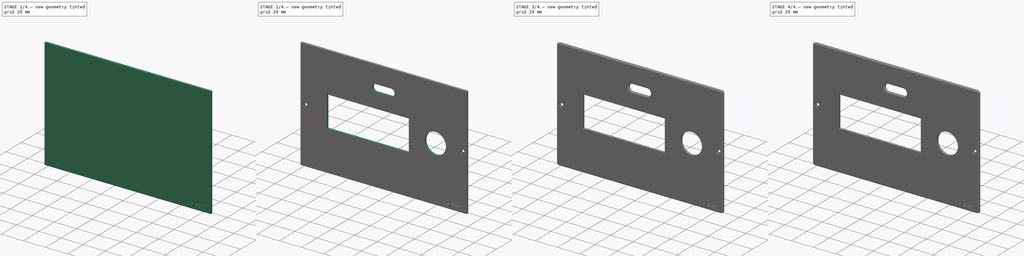
[diagram: build sequence overview — one tinted view per stage of 4, left to right]
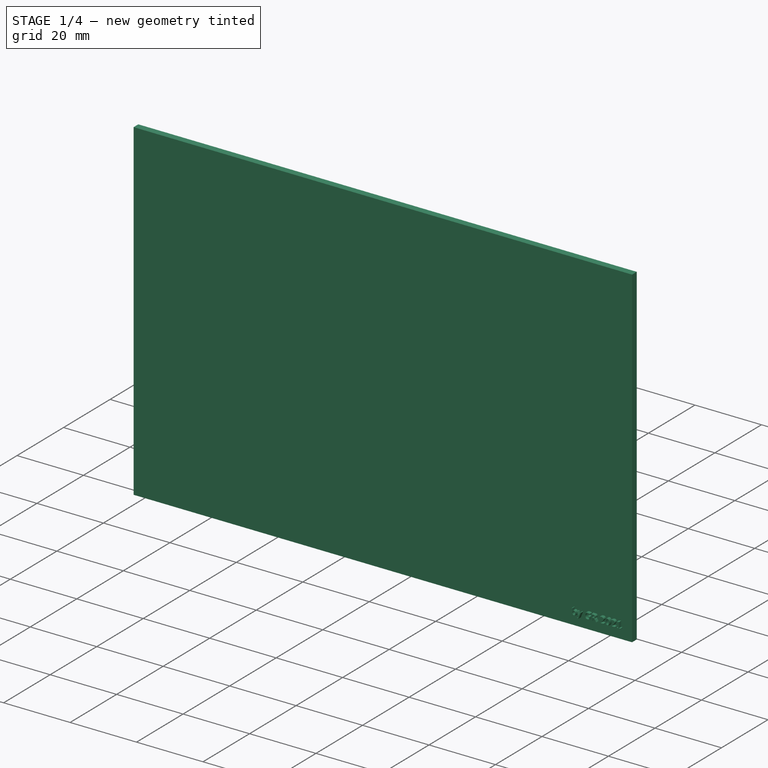
[diagram: stage 1 of 4 — iso view after this stage's code; geometry added in this stage tinted green]
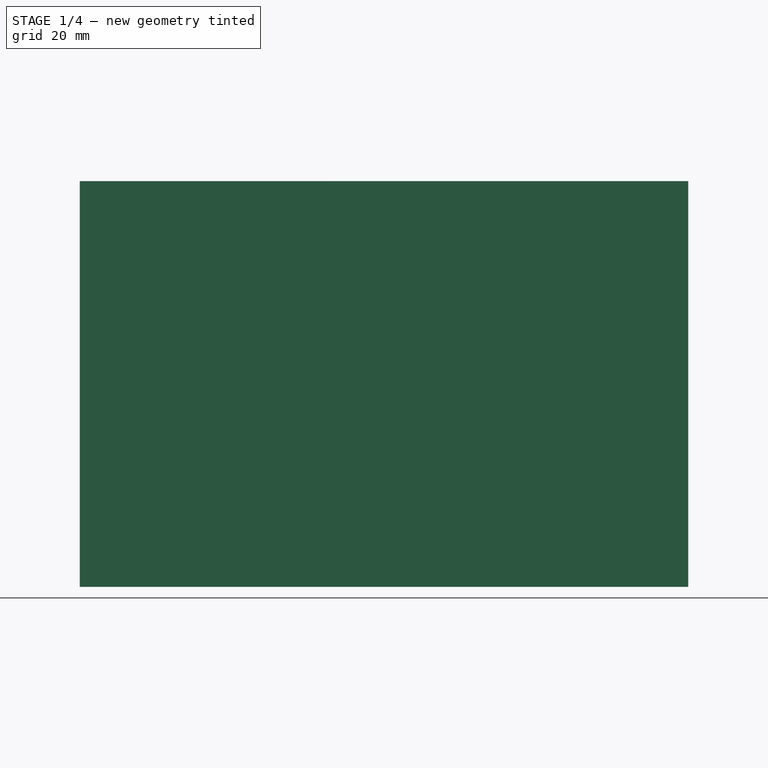
[diagram: stage 1 of 4 — front view after this stage's code; geometry added in this stage tinted green]
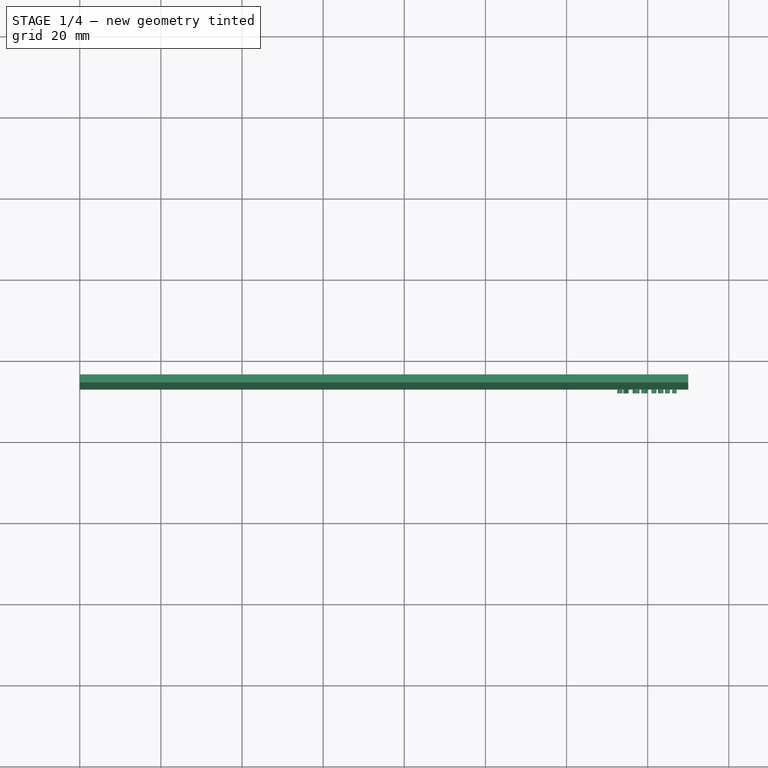
[diagram: stage 1 of 4 — top view after this stage's code; geometry added in this stage tinted green]
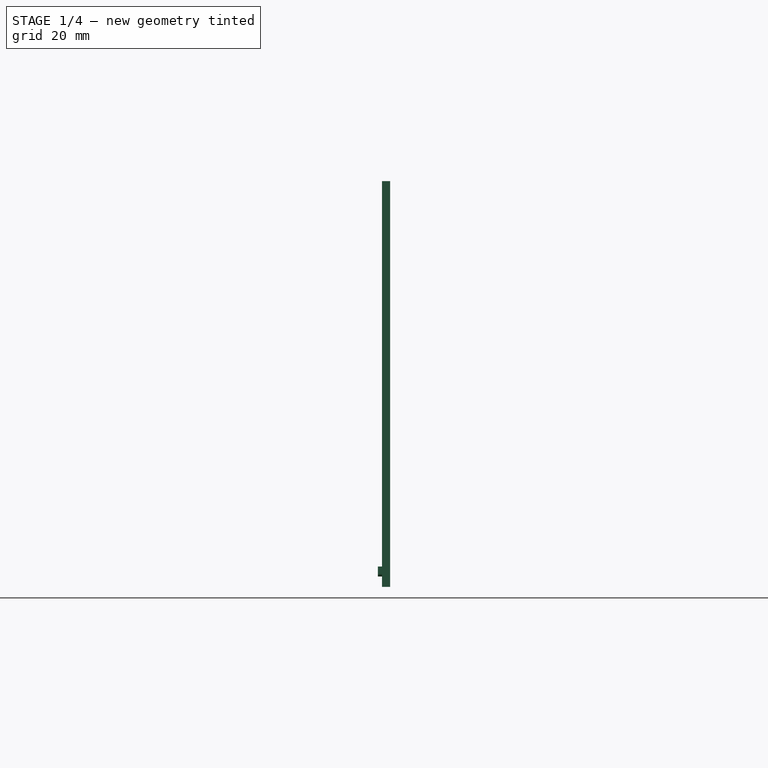
[diagram: stage 1 of 4 — right view after this stage's code; geometry added in this stage tinted green]
FCSTD DOCUMENT  (FreeCAD 0.19R22665 (Git))
Label: coperchio
License: All rights reserved
LicenseURL: http://en.wikipedia.org/wiki/All_rights_reserved
objects: Sketcher::SketchObject×5, PartDesign::Pocket×4, PartDesign::Fillet×3, PartDesign::CoordinateSystem×2, PartDesign::Pad×1, PartDesign::Body×1, Part::Part2DObjectPython×1, Part::Extrusion×1, Part::Fuse×1, App::Part×1
note: 27 computed .brp shape members not serialized (recipe doc carries the construction recipe); baked Part::Feature solids carry a one-line shape summary decoded from their .brp

FEATURE [Sketcher::SketchObject] Sketch008
  MapMode = 5
  Placement = pos=(0,-45,1e-16) rot=(1,0,0;1.5708rad)
  sketch-geometry (4):
    g0: LineSegment StartX=0 StartY=0 StartZ=0 EndX=150 EndY=0 EndZ=0
    g1: LineSegment StartX=150 StartY=0 StartZ=0 EndX=150 EndY=100 EndZ=0
    g2: LineSegment StartX=150 StartY=100 StartZ=0 EndX=0 EndY=100 EndZ=0
    g3: LineSegment StartX=0 StartY=100 StartZ=0 EndX=0 EndY=0 EndZ=0
  constraints (11):
    c: Coincident(g0,g1)
    c: Coincident(g1,g2)
    c: Coincident(g2,g3)
    c: Coincident(g3,g0)
    c: Horizontal(g0)
    c: Horizontal(g2)
    c: Vertical(g1)
    c: Vertical(g3)
    c: Coincident(g0,g-1)
    c: DistanceY(g0,g2) = 100
    c: DistanceX(g0,g0) = 150
FEATURE [PartDesign::Pad] Pad002
  Direction = (1,1,1)
  Length = 2
  Length2 = 100
  Placement = pos=(0,-45,1e-16) rot=(1,0,0;1.5708rad)
  Profile = -> Sketch008
  Type = 0
FEATURE [PartDesign::Body] Body001  label="coperchio"
  Group = -> [Sketch008,Pad002,Sketch009,Pocket004,Sketch010,Pocket005,Sketch011,Pocket006,Fillet003,Fillet004,Fillet005,Sketch012,Pocket007]
  Origin = -> Origin001
  Tip = -> Pocket007
FEATURE [Part::Part2DObjectPython] ShapeString  # Draft 2D object (typed FeaturePython)
  FontFile = <path>
  Placement = pos=(111.263,-47,22.0884) rot=(1,0,0;1.5708rad)
  Size = 2
  String = by GR 2021
  Tracking = 0
FEATURE [Part::Extrusion] Extrude002
  Base = -> ShapeString
  Dir = (0,-1,2e-16)
  DirMode = 2
  FaceMakerClass = Part::FaceMakerBullseye
  LengthFwd = 1
  LengthRev = 0
  Placement = pos=(21,0,-19) rot=(0,0,1;0rad)
  Solid = false
  Symmetric = false
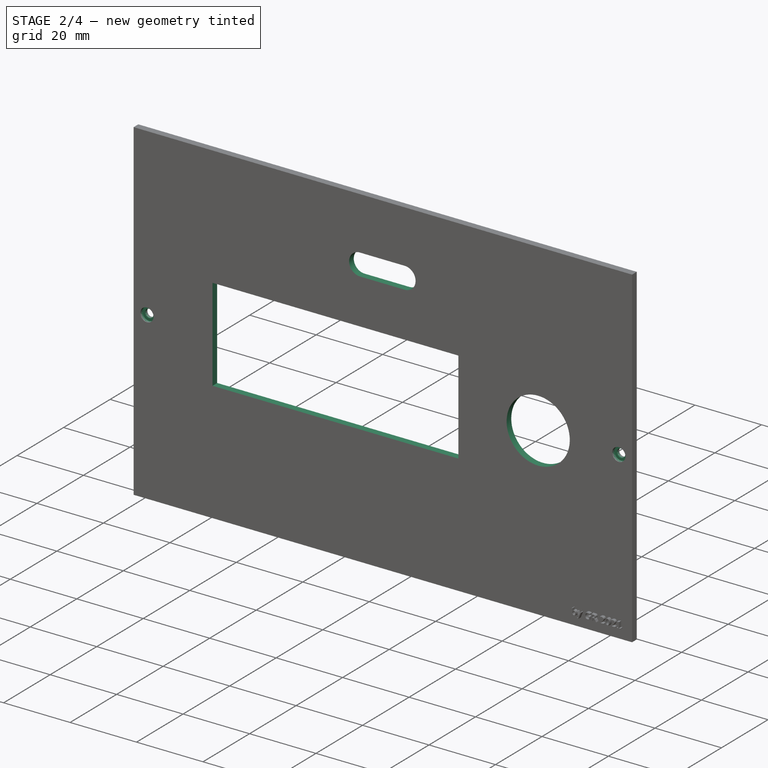
[diagram: stage 2 of 4 — iso view after this stage's code; geometry added in this stage tinted green]
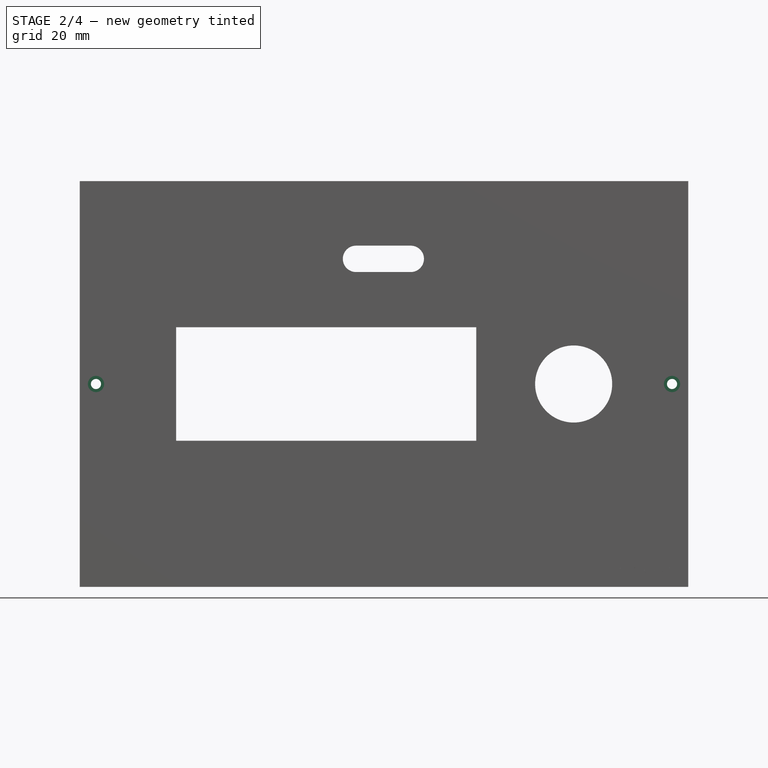
[diagram: stage 2 of 4 — front view after this stage's code; geometry added in this stage tinted green]
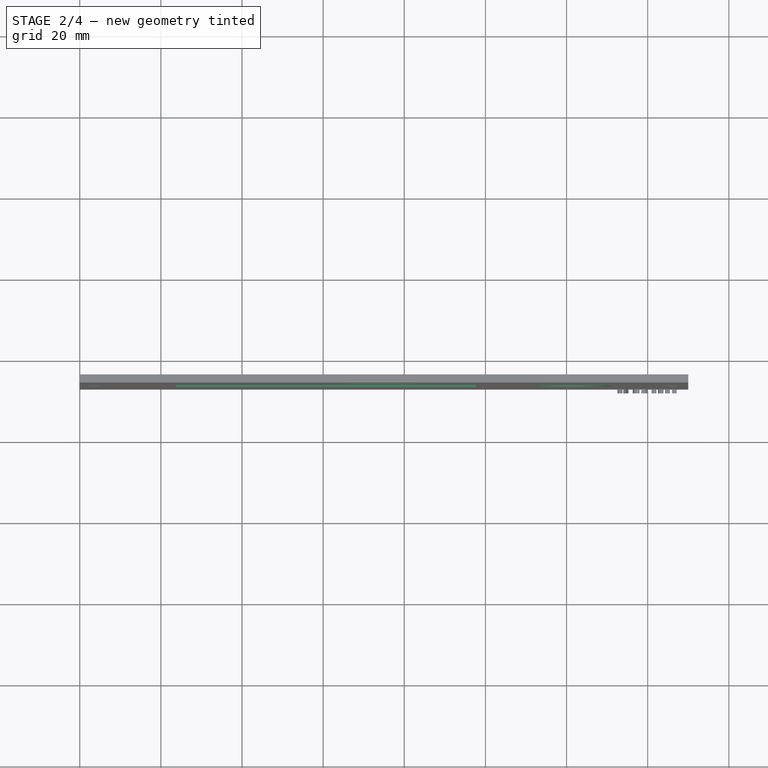
[diagram: stage 2 of 4 — top view after this stage's code; geometry added in this stage tinted green]
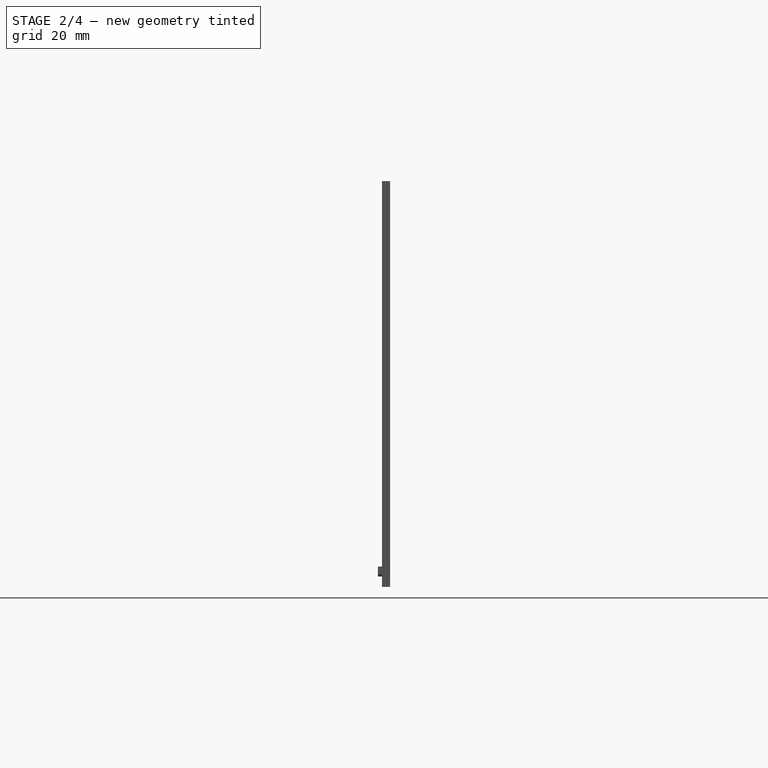
[diagram: stage 2 of 4 — right view after this stage's code; geometry added in this stage tinted green]
FEATURE [Sketcher::SketchObject] Sketch009
  ExternalGeometry = -> [Pad002]
  MapMode = 5
  Placement = pos=(0,-47,5e-16) rot=(1,0,0;1.5708rad)
  Support = -> [Pad002]
  sketch-geometry (22):
    g0: LineSegment StartX=23.75 StartY=64 StartZ=0 EndX=97.75 EndY=64 EndZ=0
    g1: LineSegment StartX=97.75 StartY=64 StartZ=0 EndX=97.75 EndY=36 EndZ=0
    g2: LineSegment StartX=97.75 StartY=36 StartZ=0 EndX=23.75 EndY=36 EndZ=0
    g3: LineSegment StartX=23.75 StartY=36 StartZ=0 EndX=23.75 EndY=64 EndZ=0
    g4: LineSegment [constr] StartX=18.75 StartY=86 StartZ=0 EndX=101.75 EndY=86 EndZ=0
    g5: LineSegment [constr] StartX=101.75 StartY=86 StartZ=0 EndX=101.75 EndY=14 EndZ=0
    g6: LineSegment [constr] StartX=101.75 StartY=14 StartZ=0 EndX=18.75 EndY=14 EndZ=0
    g7: LineSegment [constr] StartX=18.75 StartY=14 StartZ=0 EndX=18.75 EndY=86 EndZ=0
    g8: Circle CenterX=121.75 CenterY=50 CenterZ=0 NormalX=0 NormalY=0 NormalZ=1 AngleXU=0 Radius=9.5
    g9: LineSegment [constr] StartX=20.75 StartY=68 StartZ=0 EndX=100.75 EndY=68 EndZ=0
    g10: LineSegment [constr] StartX=100.75 StartY=68 StartZ=0 EndX=100.75 EndY=32 EndZ=0
    g11: LineSegment [constr] StartX=100.75 StartY=32 StartZ=0 EndX=20.75 EndY=32 EndZ=0
    g12: LineSegment [constr] StartX=20.75 StartY=32 StartZ=0 EndX=20.75 EndY=68 EndZ=0
    g13: LineSegment [constr] StartX=0 StartY=50 StartZ=0 EndX=150 EndY=50 EndZ=0
    g14: LineSegment [constr] StartX=60.75 StartY=68 StartZ=0 EndX=60.75 EndY=32 EndZ=0
    g15: Circle [constr] CenterX=9.375 CenterY=50 CenterZ=0 NormalX=0 NormalY=0 NormalZ=1 AngleXU=0 Radius=9.375
    g16: Circle [constr] CenterX=140.625 CenterY=50 CenterZ=0 NormalX=0 NormalY=0 NormalZ=1 AngleXU=0 Radius=9.375
    g17: ArcOfCircle CenterX=68.1 CenterY=80.85 CenterZ=0 NormalX=0 NormalY=0 NormalZ=1 AngleXU=0 Radius=3.25 StartAngle=1.5708 EndAngle=4.71239
    g18: ArcOfCircle CenterX=81.6 CenterY=80.85 CenterZ=0 NormalX=0 NormalY=0 NormalZ=1 AngleXU=0 Radius=3.25 StartAngle=4.71239 EndAngle=7.85398
    g19: LineSegment StartX=68.1 StartY=77.6 StartZ=0 EndX=81.6 EndY=77.6 EndZ=0
    g20: LineSegment StartX=68.1 StartY=84.1 StartZ=0 EndX=81.6 EndY=84.1 EndZ=0
    g21: LineSegment [constr] StartX=64.85 StartY=80.85 StartZ=0 EndX=84.85 EndY=80.85 EndZ=0
  constraints (61):
    c: Coincident(g0,g1)
    c: Coincident(g1,g2)
    c: Coincident(g2,g3)
    c: Coincident(g3,g0)
    c: Horizontal(g0)
    c: Horizontal(g2)
    c: Vertical(g1)
    c: Coincident(g4,g5)
    c: Coincident(g5,g6)
    c: Coincident(g6,g7)
    c: Coincident(g7,g4)
    c: Horizontal(g4)
    c: Horizontal(g6)
    c: Vertical(g5)
    c: Diameter(g8) = 19
    c: DistanceX(g4,g4) = 83
    c: Coincident(g9,g10)
    c: Coincident(g10,g11)
    c: Coincident(g11,g12)
    c: Coincident(g12,g9)
    c: Horizontal(g11)
    c: Vertical(g10)
    c: Vertical(g12)
    c: DistanceX(g9,g9) = 80
    c: DistanceX(g6,g11) = 2
    c: DistanceY(g9,g4) = 18
    c: DistanceY(g6,g11) = 18
    c: DistanceY(g12,g12) = 36
    c: PointOnObject(g13,g-3)
    c: PointOnObject(g13,g-6)
    c: Symmetric(g-4,g-1,g13)
    c: Symmetric(g4,g6,g13)
    c: PointOnObject(g8,g13)
    c: Symmetric(g0,g2,g13)
    c: PointOnObject(g14,g9)
    c: PointOnObject(g14,g11)
    c: Symmetric(g9,g9,g14)
    c: Symmetric(g0,g0,g14)
    c: Distance(g0) = 74
    c: Distance(g3) = 28
    c: Distance(g8,g5) = 20
    c: PointOnObject(g15,g13)
    c: PointOnObject(g13,g15)
    c: Tangent(g15,g7)
    c: PointOnObject(g16,g13)
    c: PointOnObject(g13,g16)
    c: Tangent(g16,g8)
    c: Equal(g16,g15)
    c: Tangent(g17,g20)
    c: Tangent(g17,g19)
    c: Tangent(g19,g18)
    c: Tangent(g20,g18)
    c: Horizontal(g19)
    c: Equal(g17,g18)
    c: DistanceY(g9,g18) = 9.6
    c: DistanceY(g18,g18) = 6.5
    c: PointOnObject(g21,g17)
    c: PointOnObject(g21,g18)
    c: Symmetric(g17,g17,g21)
    c: Distance(g21,g21) = 20
    c: DistanceX(g21,g9) = 15.9
FEATURE [PartDesign::Pocket] Pocket004
  BaseFeature = -> Pad002
  Length = 5
  Length2 = 100
  Placement = pos=(0,-45,1e-16) rot=(1,0,0;1.5708rad)
  Profile = -> Sketch009
  Type = 2
FEATURE [Sketcher::SketchObject] Sketch010
  MapMode = 5
  Placement = pos=(0,-45,1e-16) rot=(-1,0,0;1.5708rad)
  Support = -> [Pocket004]
  sketch-geometry (2):
    g0: Circle CenterX=146 CenterY=-50 CenterZ=0 NormalX=0 NormalY=0 NormalZ=1 AngleXU=0 Radius=1.25
    g1: Circle CenterX=4 CenterY=-50 CenterZ=0 NormalX=0 NormalY=0 NormalZ=1 AngleXU=0 Radius=1.25
  constraints (1):
    c: Equal(g0,g1)
FEATURE [PartDesign::Pocket] Pocket005
  BaseFeature = -> Pocket004
  Length = 5
  Length2 = 100
  Placement = pos=(0,-45,1e-16) rot=(1,0,0;1.5708rad)
  Profile = -> Sketch010
  Type = 1
FEATURE [Sketcher::SketchObject] Sketch011
  ExternalGeometry = -> [Pocket005]
  MapMode = 5
  Placement = pos=(0,-47,5e-16) rot=(1,0,0;1.5708rad)
  Support = -> [Pocket005]
  sketch-geometry (2):
    g0: Circle CenterX=146 CenterY=50 CenterZ=0 NormalX=0 NormalY=0 NormalZ=1 AngleXU=0 Radius=2
    g1: Circle CenterX=4 CenterY=50 CenterZ=0 NormalX=0 NormalY=0 NormalZ=1 AngleXU=0 Radius=2
  constraints (4):
    c: Coincident(g0,g-4)
    c: Diameter(g0) = 4
    c: Coincident(g1,g-3)
    c: Equal(g1,g0)
FEATURE [PartDesign::Pocket] Pocket006
  BaseFeature = -> Pocket005
  Length = 1
  Length2 = 100
  Placement = pos=(0,-45,1e-16) rot=(1,0,0;1.5708rad)
  Profile = -> Sketch011
  Type = 0
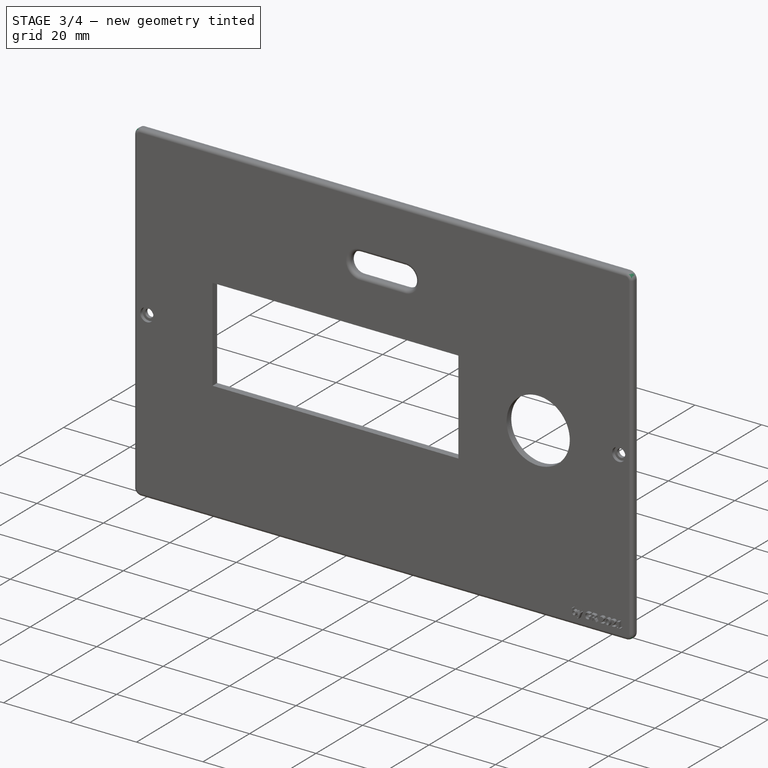
[diagram: stage 3 of 4 — iso view after this stage's code; geometry added in this stage tinted green]
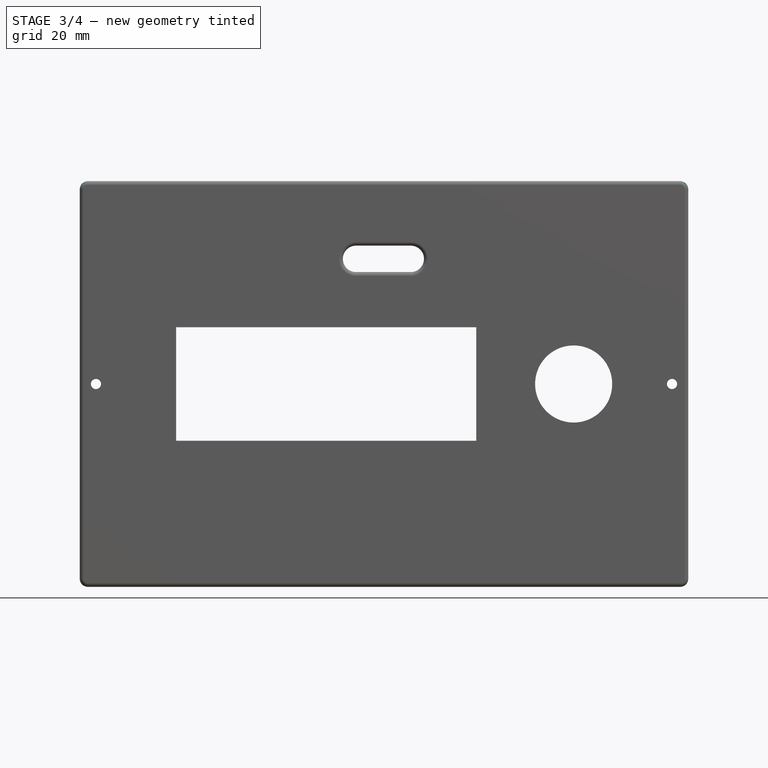
[diagram: stage 3 of 4 — front view after this stage's code; geometry added in this stage tinted green]
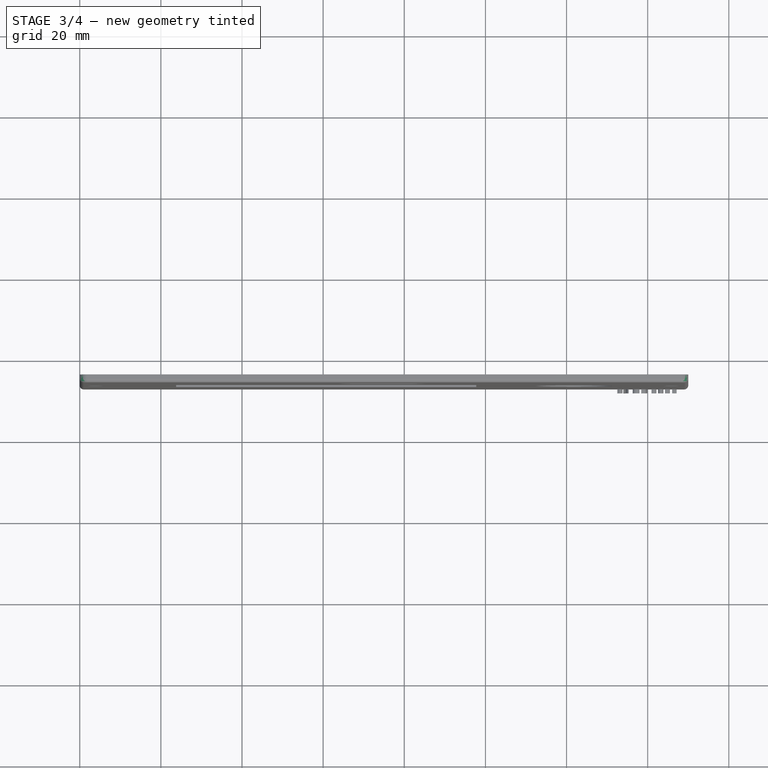
[diagram: stage 3 of 4 — top view after this stage's code; geometry added in this stage tinted green]
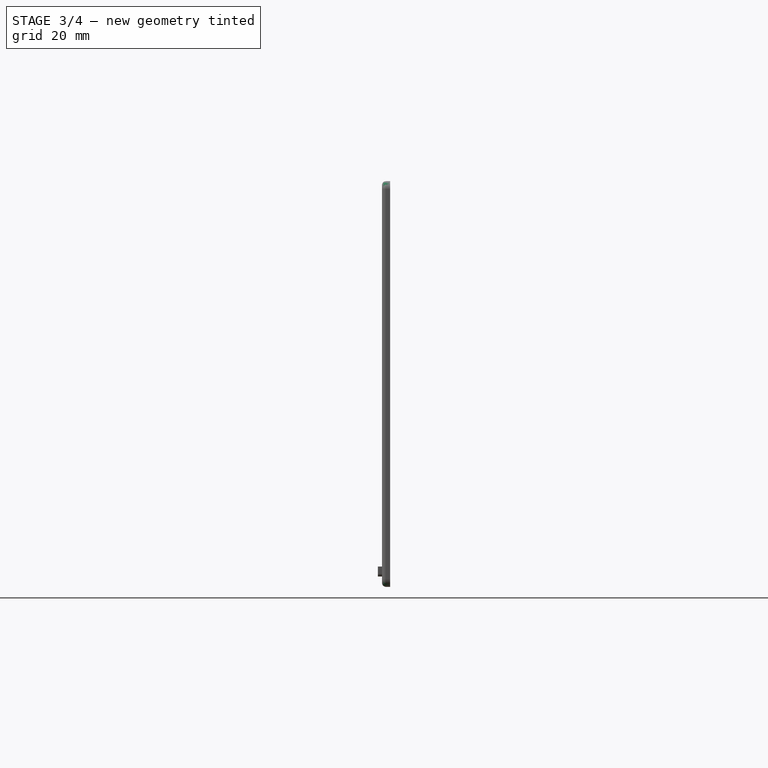
[diagram: stage 3 of 4 — right view after this stage's code; geometry added in this stage tinted green]
FEATURE [PartDesign::Fillet] Fillet003
  Base = -> Pocket006 [Edge8,Edge2,Edge1,Edge5]
  BaseFeature = -> Pocket006
  Placement = pos=(0,-45,1e-16) rot=(1,0,0;1.5708rad)
  Radius = 2
  SupportTransform = false
FEATURE [PartDesign::Fillet] Fillet004
  Base = -> Fillet003 [Edge27,Edge31,Edge28,Edge4]
  BaseFeature = -> Fillet003
  Placement = pos=(0,-45,1e-16) rot=(1,0,0;1.5708rad)
  Radius = 1
  SupportTransform = false
FEATURE [PartDesign::Fillet] Fillet005
  Base = -> Fillet004 [Edge42,Edge43,Edge41,Edge40]
  BaseFeature = -> Fillet004
  Placement = pos=(0,-45,1e-16) rot=(1,0,0;1.5708rad)
  Radius = 1
  SupportTransform = false
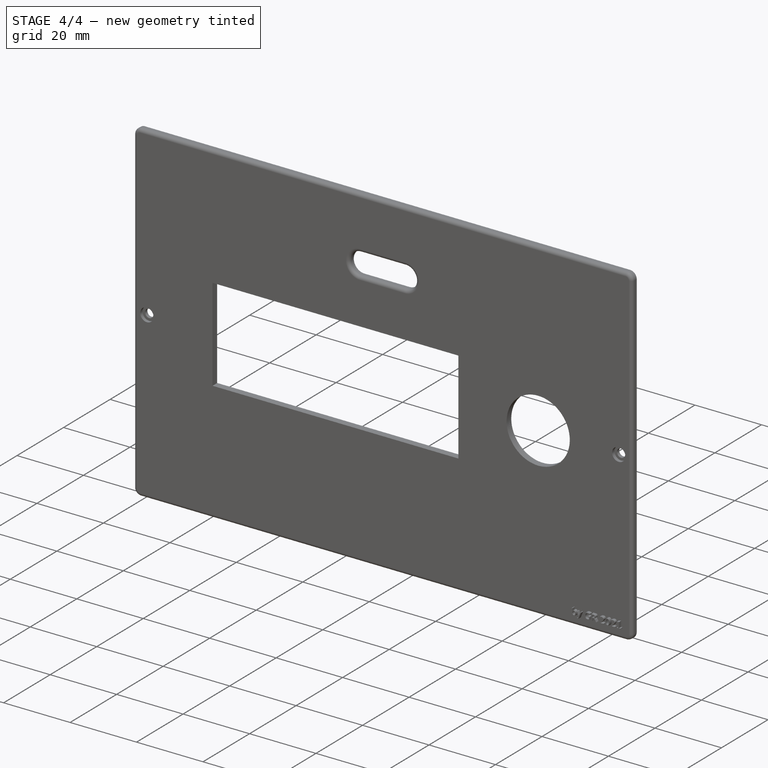
[diagram: stage 4 of 4 — iso view after this stage's code; geometry added in this stage tinted green]
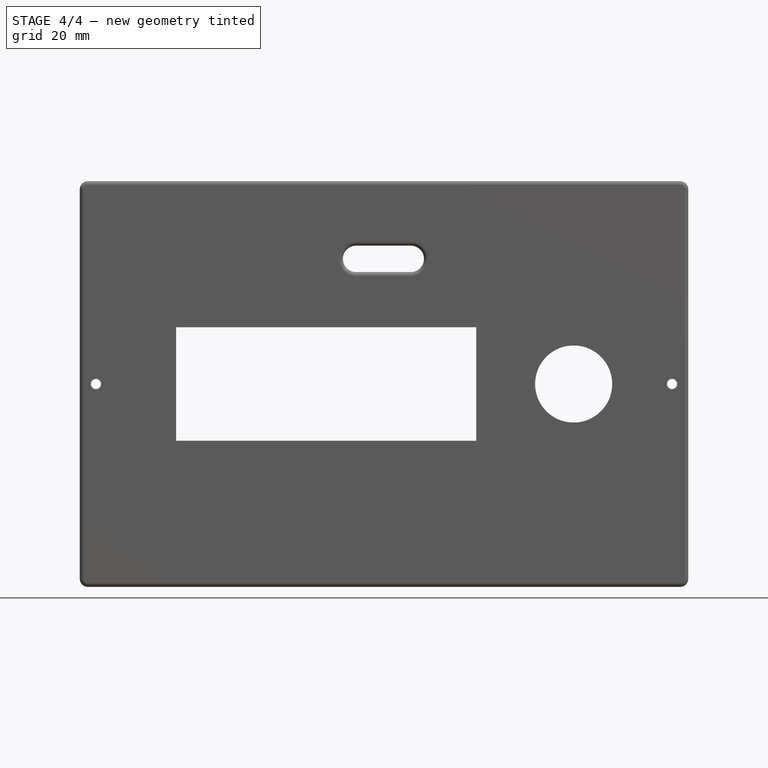
[diagram: stage 4 of 4 — front view after this stage's code; geometry added in this stage tinted green]
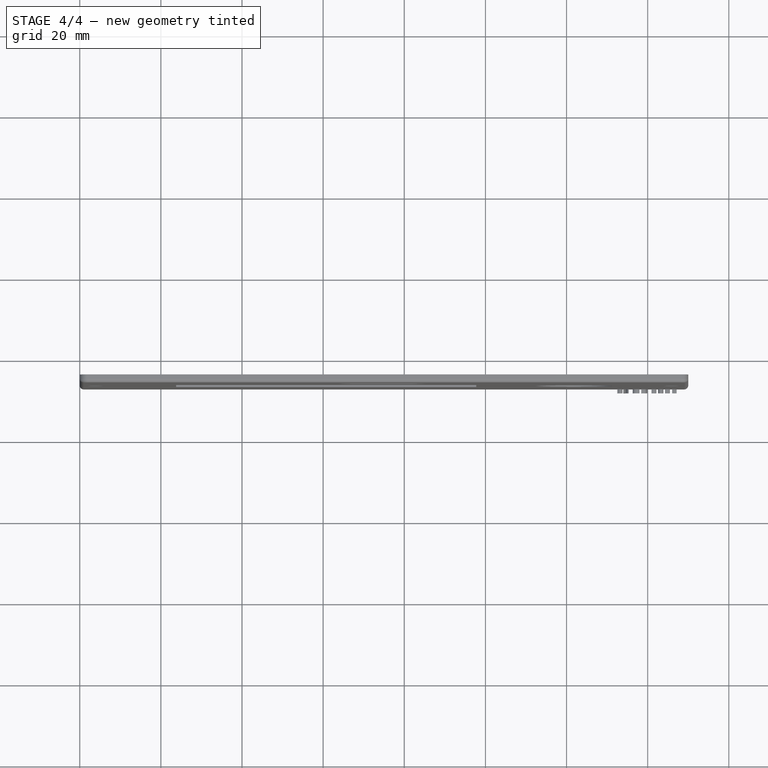
[diagram: stage 4 of 4 — top view after this stage's code; geometry added in this stage tinted green]
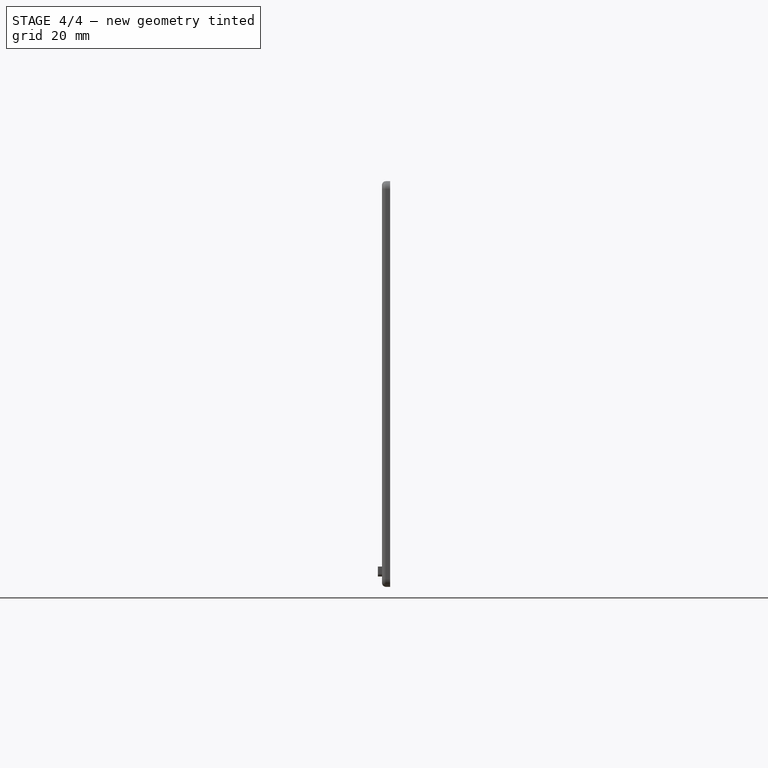
[diagram: stage 4 of 4 — right view after this stage's code; geometry added in this stage tinted green]
FEATURE [Sketcher::SketchObject] Sketch012
  ExternalGeometry = -> [Fillet005]
  MapMode = 5
  Placement = pos=(97.75,-45,1e-16) rot=(0.707107,0,-0.707107;3.14159rad)
  Support = -> [Fillet005]
  sketch-geometry (5):
    g0: LineSegment StartX=-41 StartY=-1.55e-14 StartZ=0 EndX=-59 EndY=-1.55e-14 EndZ=0
    g1: LineSegment StartX=-59 StartY=-1.55e-14 StartZ=0 EndX=-59 EndY=1 EndZ=0
    g2: LineSegment StartX=-59 StartY=1 StartZ=0 EndX=-41 EndY=1 EndZ=0
    g3: LineSegment StartX=-41 StartY=1 StartZ=0 EndX=-41 EndY=-1.54e-14 EndZ=0
    g4: LineSegment [constr] StartX=-50 StartY=2 StartZ=0 EndX=-50 EndY=-1.55e-14 EndZ=0
  constraints (14):
    c: Coincident(g0,g1)
    c: Coincident(g1,g2)
    c: Coincident(g2,g3)
    c: Coincident(g3,g0)
    c: Horizontal(g0)
    c: Vertical(g1)
    c: Vertical(g3)
    c: PointOnObject(g0,g-3)
    c: PointOnObject(g4,g-4)
    c: Symmetric(g-5,g-6,g4)
    c: Symmetric(g1,g2,g4)
    c: DistanceY(g1,g1) = 1
    c: DistanceX(g2,g2) = 18
    c: PointOnObject(g4,g0)
FEATURE [PartDesign::Pocket] Pocket007
  BaseFeature = -> Fillet005
  Length = 6
  Length2 = 100
  Placement = pos=(0,-45,1e-16) rot=(1,0,0;1.5708rad)
  Profile = -> Sketch012
  Type = 0
FEATURE [Part::Fuse] Fusion
  Base = -> Extrude002
  Tool = -> Body001
FEATURE [PartDesign::CoordinateSystem] LCS_box
  AttacherType = Attacher::AttachEngine3D
  MapMode = 11
  Placement = pos=(4,-45,50) rot=(0.57735,-0.57735,-0.57735;4.18879rad)
  Support = -> [Fusion]
FEATURE [PartDesign::CoordinateSystem] LCS_button
  AttacherType = Attacher::AttachEngine3D
  MapMode = 11
  Placement = pos=(121.75,-47,50) rot=(0.57735,-0.57735,0.57735;2.0944rad)
  Support = -> [Fusion]
FEATURE [App::Part] Part  label="coperchio_completo"
  Group = -> [Body001,ShapeString,Extrude002,Fusion,LCS_box,LCS_button]
  Origin = -> Origin002
note: 1 file-system path scrubbed to <path> (originals preserved in the JSON sidecar)
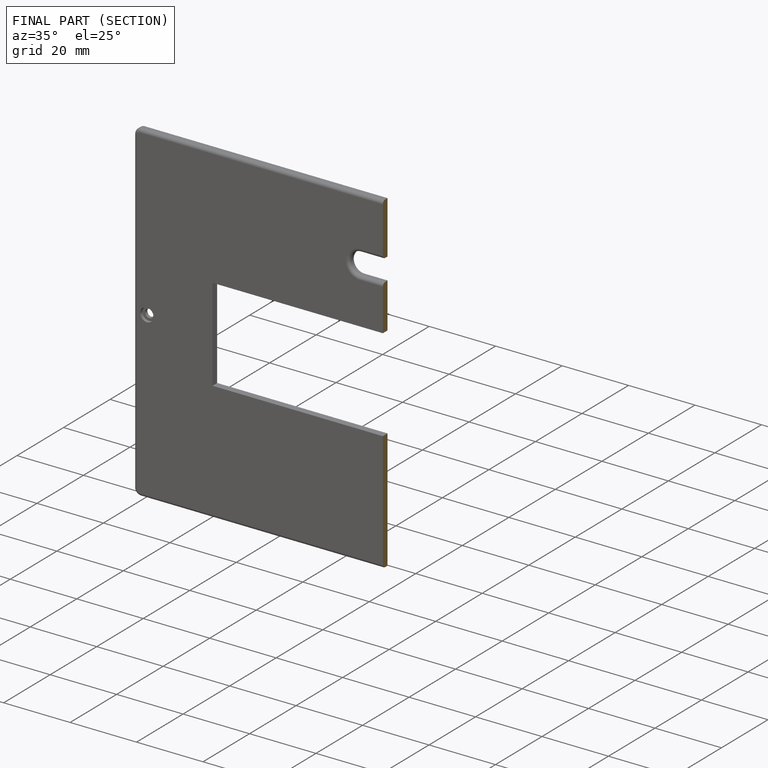
[diagram: finished part — half-section view (interior)]
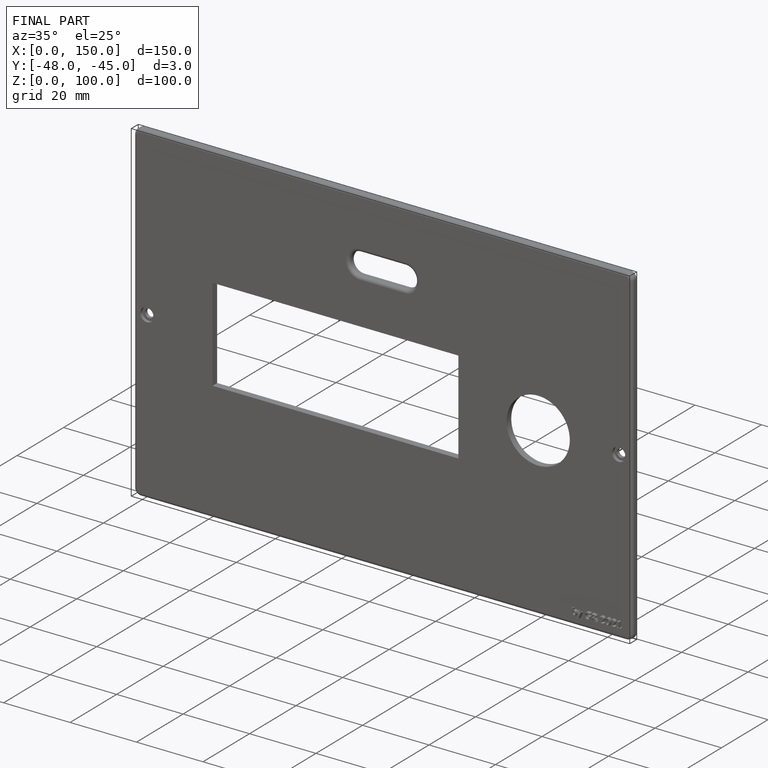
[diagram: finished part — iso view with bounding-box wireframe]
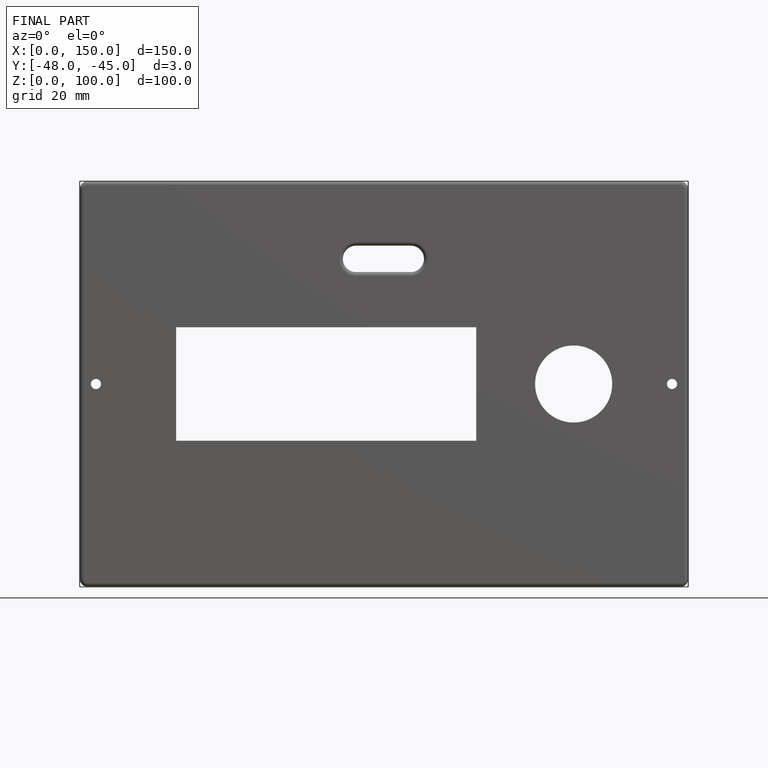
[diagram: finished part — front view with bounding-box wireframe]
